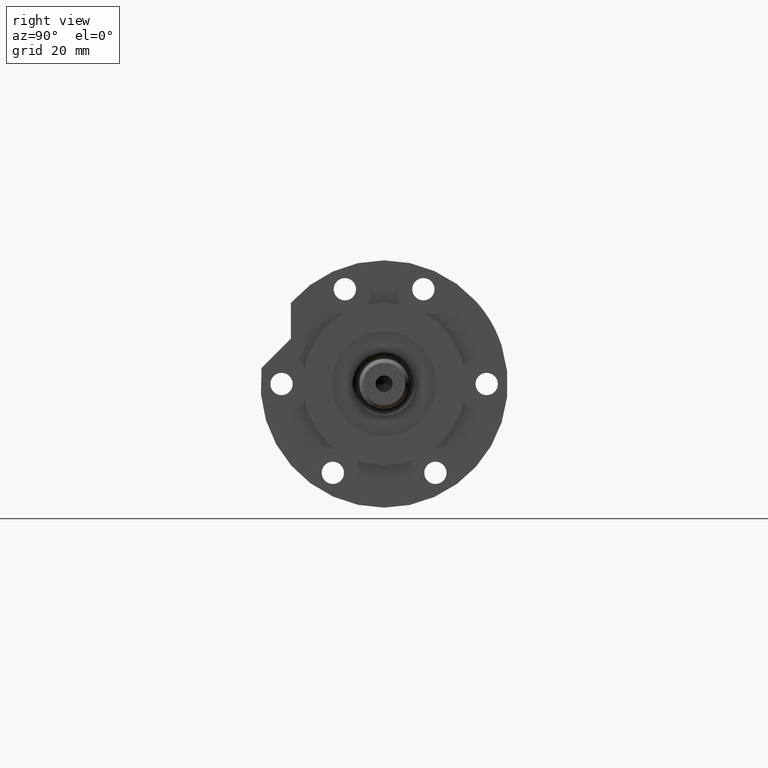
[diagram: clean part render]
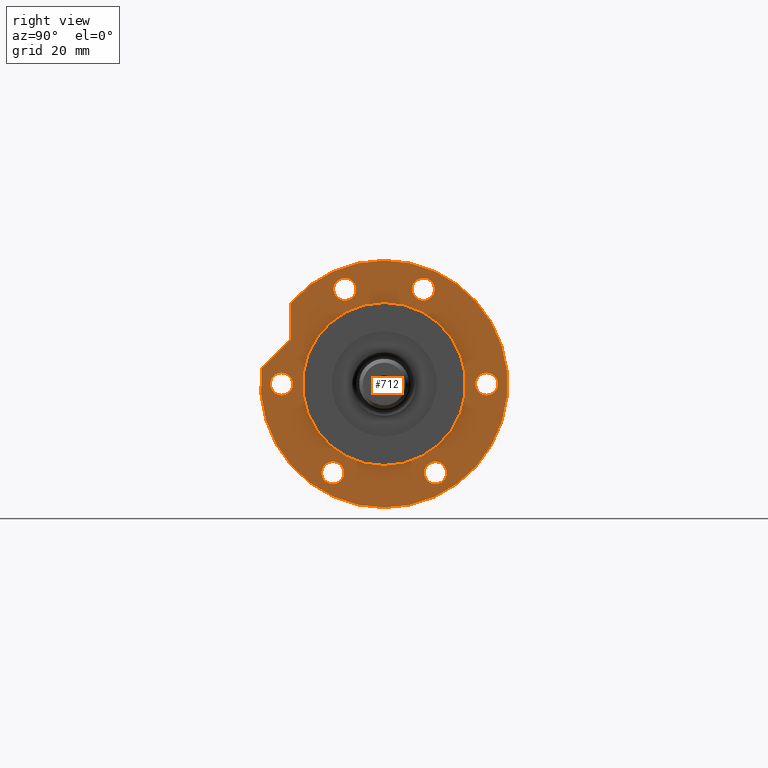
[diagram: same view with one face highlighted and labeled with its STEP entity id]
A machine part, right view. The second image highlights one B-rep face of the part: STEP entity #712.
In plain terms, the highlighted planar face has unit normal (1, 0, -0).
Its self-contained STEP definition (entity closure, byte-faithful):
#15 = AXIS2_PLACEMENT_3D ( 'NONE', #151, #5626, #1598 ) ;
#93 = AXIS2_PLACEMENT_3D ( 'NONE', #796, #2793, #6353 ) ;
#124 = FACE_BOUND ( 'NONE', #245, .T. ) ;
#141 = CARTESIAN_POINT ( 'NONE',  ( 0.000000000000000000, 39.00000000000000000, 17.00000000000000000 ) ) ;
#142 = DIRECTION ( 'NONE',  ( 0.000000000000000000, 0.000000000000000000, 1.000000000000000000 ) ) ;
#151 = CARTESIAN_POINT ( 'NONE',  ( 0.000000000000000000, -39.00000000000000000, 17.00000000000000000 ) ) ;
#176 = VERTEX_POINT ( 'NONE', #309 ) ;
#180 = CARTESIAN_POINT ( 'NONE',  ( 3.617158501555293296E-14, 35.47361286101151734, 17.00000000000000000 ) ) ;
#182 = LINE ( 'NONE', #2083, #5159 ) ;
#197 = EDGE_CURVE ( 'NONE', #4147, #1885, #521, .T. ) ;
#216 = DIRECTION ( 'NONE',  ( 1.000000000000000000, 0.000000000000000000, 0.000000000000000000 ) ) ;
#224 = CIRCLE ( 'NONE', #2841, 31.00000000000000711 ) ;
#233 = CARTESIAN_POINT ( 'NONE',  ( 30.83217135699462830, 35.47361286101148892, 17.00000000000000000 ) ) ;
#245 = EDGE_LOOP ( 'NONE', ( #751, #598 ) ) ;
#251 = CARTESIAN_POINT ( 'NONE',  ( 0.000000000000000000, 39.00000000000000000, 17.00000000000000000 ) ) ;
#284 = EDGE_LOOP ( 'NONE', ( #493, #508 ) ) ;
#288 = FACE_BOUND ( 'NONE', #2873, .T. ) ;
#289 = VERTEX_POINT ( 'NONE', #406 ) ;
#296 = CARTESIAN_POINT ( 'NONE',  ( 31.78130176794011064, -14.92465386223865842, 17.00000000000000000 ) ) ;
#309 = CARTESIAN_POINT ( 'NONE',  ( 4.250000000000000888, -39.00000000000000000, 17.00000000000000000 ) ) ;
#321 = DIRECTION ( 'NONE',  ( 0.000000000000000000, 0.000000000000000000, 1.000000000000000000 ) ) ;
#340 = CIRCLE ( 'NONE', #15, 4.250000000000000888 ) ;
#358 = DIRECTION ( 'NONE',  ( 1.000000000000000000, 0.000000000000000000, -0.000000000000000000 ) ) ;
#406 = CARTESIAN_POINT ( 'NONE',  ( -38.02499074759315079, 19.49999999999992539, 17.00000000000000000 ) ) ;
#493 = ORIENTED_EDGE ( 'NONE', *, *, #4815, .F. ) ;
#504 = ORIENTED_EDGE ( 'NONE', *, *, #1039, .F. ) ;
#508 = ORIENTED_EDGE ( 'NONE', *, *, #5744, .F. ) ;
#510 = EDGE_CURVE ( 'NONE', #2360, #2929, #6399, .T. ) ;
#521 = CIRCLE ( 'NONE', #4193, 4.250000000000000888 ) ;
#522 = CARTESIAN_POINT ( 'NONE',  ( 4.250000000000000888, 39.00000000000000000, 17.00000000000000000 ) ) ;
#598 = ORIENTED_EDGE ( 'NONE', *, *, #4343, .F. ) ;
#606 = LINE ( 'NONE', #180, #5764 ) ;
#617 = CARTESIAN_POINT ( 'NONE',  ( -46.99999999999999289, 0.000000000000000000, 17.00000000000000000 ) ) ;
#712 = ADVANCED_FACE ( 'NONE', ( #1662, #124, #5666, #2359, #3759, #1897, #5345, #288 ), #4854, .T. ) ;
#751 = ORIENTED_EDGE ( 'NONE', *, *, #1037, .F. ) ;
#796 = CARTESIAN_POINT ( 'NONE',  ( -33.77499074759302289, -19.50000000000015277, 17.00000000000000000 ) ) ;
#870 = AXIS2_PLACEMENT_3D ( 'NONE', #3126, #4155, #5143 ) ;
#913 = ORIENTED_EDGE ( 'NONE', *, *, #1494, .F. ) ;
#965 = AXIS2_PLACEMENT_3D ( 'NONE', #141, #2208, #2170 ) ;
#981 = DIRECTION ( 'NONE',  ( 0.000000000000000000, 0.000000000000000000, 1.000000000000000000 ) ) ;
#987 = CARTESIAN_POINT ( 'NONE',  ( 40.28130176794012129, -14.92465386223865842, 17.00000000000000000 ) ) ;
#1010 = EDGE_CURVE ( 'NONE', #2058, #6273, #606, .T. ) ;
#1037 = EDGE_CURVE ( 'NONE', #3743, #6459, #1982, .T. ) ;
#1039 = EDGE_CURVE ( 'NONE', #4352, #5539, #2303, .T. ) ;
#1053 = CIRCLE ( 'NONE', #965, 4.250000000000000888 ) ;
#1099 = CARTESIAN_POINT ( 'NONE',  ( -33.77499074759315079, 19.49999999999992539, 17.00000000000000000 ) ) ;
#1132 = VERTEX_POINT ( 'NONE', #1339 ) ;
#1158 = CARTESIAN_POINT ( 'NONE',  ( 0.000000000000000000, -39.00000000000000000, 17.00000000000000000 ) ) ;
#1251 = CARTESIAN_POINT ( 'NONE',  ( -33.77499074759302289, -19.50000000000015277, 17.00000000000000000 ) ) ;
#1305 = DIRECTION ( 'NONE',  ( 1.000000000000000000, 0.000000000000000000, 0.000000000000000000 ) ) ;
#1339 = CARTESIAN_POINT ( 'NONE',  ( 6.092310621118299352, 46.60347359688769586, 17.00000000000000000 ) ) ;
#1350 = CARTESIAN_POINT ( 'NONE',  ( 0.000000000000000000, 0.000000000000000000, 17.00000000000000000 ) ) ;
#1439 = DIRECTION ( 'NONE',  ( 0.000000000000000000, 0.000000000000000000, 1.000000000000000000 ) ) ;
#1444 = DIRECTION ( 'NONE',  ( 1.000000000000000000, 0.000000000000000000, 0.000000000000000000 ) ) ;
#1494 = EDGE_CURVE ( 'NONE', #2929, #2360, #3554, .T. ) ;
#1523 = EDGE_CURVE ( 'NONE', #6222, #289, #5135, .T. ) ;
#1598 = DIRECTION ( 'NONE',  ( 1.000000000000000000, 0.000000000000000000, 0.000000000000000000 ) ) ;
#1623 = ORIENTED_EDGE ( 'NONE', *, *, #2132, .F. ) ;
#1640 = ORIENTED_EDGE ( 'NONE', *, *, #1523, .F. ) ;
#1662 = FACE_BOUND ( 'NONE', #4498, .T. ) ;
#1668 = ORIENTED_EDGE ( 'NONE', *, *, #5687, .F. ) ;
#1682 = CARTESIAN_POINT ( 'NONE',  ( 0.000000000000000000, 0.000000000000000000, 17.00000000000000000 ) ) ;
#1683 = DIRECTION ( 'NONE',  ( 1.000000000000000000, 0.000000000000000000, 0.000000000000000000 ) ) ;
#1751 = DIRECTION ( 'NONE',  ( 0.000000000000000000, 0.000000000000000000, 1.000000000000000000 ) ) ;
#1860 = CARTESIAN_POINT ( 'NONE',  ( -4.250000000000000888, 39.00000000000000000, 17.00000000000000000 ) ) ;
#1885 = VERTEX_POINT ( 'NONE', #1860 ) ;
#1897 = FACE_BOUND ( 'NONE', #2226, .T. ) ;
#1973 = AXIS2_PLACEMENT_3D ( 'NONE', #5676, #6310, #3281 ) ;
#1982 = CIRCLE ( 'NONE', #5024, 4.250000000000003553 ) ;
#2058 = VERTEX_POINT ( 'NONE', #5266 ) ;
#2061 = EDGE_LOOP ( 'NONE', ( #504, #3803 ) ) ;
#2083 = CARTESIAN_POINT ( 'NONE',  ( 26.34789210900296652, 26.34789210900323297, 17.00000000000000000 ) ) ;
#2116 = DIRECTION ( 'NONE',  ( 0.000000000000000000, 0.000000000000000000, 1.000000000000000000 ) ) ;
#2122 = DIRECTION ( 'NONE',  ( 0.000000000000000000, 0.000000000000000000, 1.000000000000000000 ) ) ;
#2132 = EDGE_CURVE ( 'NONE', #1885, #4147, #1053, .T. ) ;
#2165 = EDGE_CURVE ( 'NONE', #3716, #2710, #224, .T. ) ;
#2170 = DIRECTION ( 'NONE',  ( 1.000000000000000000, 0.000000000000000000, 0.000000000000000000 ) ) ;
#2208 = DIRECTION ( 'NONE',  ( 0.000000000000000000, 0.000000000000000000, 1.000000000000000000 ) ) ;
#2226 = EDGE_LOOP ( 'NONE', ( #5034, #1640 ) ) ;
#2229 = CIRCLE ( 'NONE', #4432, 46.99999999999999289 ) ;
#2271 = CARTESIAN_POINT ( 'NONE',  ( -33.77499074759315079, 19.49999999999992539, 17.00000000000000000 ) ) ;
#2303 = CIRCLE ( 'NONE', #2934, 4.250000000000003553 ) ;
#2359 = FACE_BOUND ( 'NONE', #284, .T. ) ;
#2360 = VERTEX_POINT ( 'NONE', #2826 ) ;
#2412 = EDGE_LOOP ( 'NONE', ( #913, #5195 ) ) ;
#2548 = VERTEX_POINT ( 'NONE', #6354 ) ;
#2593 = DIRECTION ( 'NONE',  ( 0.000000000000000000, 0.000000000000000000, 1.000000000000000000 ) ) ;
#2605 = VERTEX_POINT ( 'NONE', #617 ) ;
#2640 = DIRECTION ( 'NONE',  ( 0.7071067811865511255, -0.7071067811865440200, 0.000000000000000000 ) ) ;
#2661 = DIRECTION ( 'NONE',  ( 0.000000000000000000, 0.000000000000000000, 1.000000000000000000 ) ) ;
#2708 = DIRECTION ( 'NONE',  ( 0.000000000000000000, 0.000000000000000000, 1.000000000000000000 ) ) ;
#2710 = VERTEX_POINT ( 'NONE', #5017 ) ;
#2778 = ORIENTED_EDGE ( 'NONE', *, *, #3299, .T. ) ;
#2793 = DIRECTION ( 'NONE',  ( 0.000000000000000000, 0.000000000000000000, 1.000000000000000000 ) ) ;
#2826 = CARTESIAN_POINT ( 'NONE',  ( -29.52499074759301578, -19.50000000000015277, 17.00000000000000000 ) ) ;
#2841 = AXIS2_PLACEMENT_3D ( 'NONE', #1682, #2661, #3646 ) ;
#2873 = EDGE_LOOP ( 'NONE', ( #4028, #1668 ) ) ;
#2905 = VERTEX_POINT ( 'NONE', #3841 ) ;
#2929 = VERTEX_POINT ( 'NONE', #5844 ) ;
#2934 = AXIS2_PLACEMENT_3D ( 'NONE', #4121, #5657, #6125 ) ;
#3028 = EDGE_CURVE ( 'NONE', #1132, #2605, #6424, .T. ) ;
#3126 = CARTESIAN_POINT ( 'NONE',  ( 0.000000000000000000, 0.000000000000000000, 17.00000000000000000 ) ) ;
#3193 = DIRECTION ( 'NONE',  ( 1.000000000000000000, -1.019675812477181804E-15, 0.000000000000000000 ) ) ;
#3239 = CARTESIAN_POINT ( 'NONE',  ( -29.52499074759315434, 19.49999999999992539, 17.00000000000000000 ) ) ;
#3243 = DIRECTION ( 'NONE',  ( 1.000000000000000000, 0.000000000000000000, 0.000000000000000000 ) ) ;
#3272 = CARTESIAN_POINT ( 'NONE',  ( 0.000000000000000000, 0.000000000000000000, 17.00000000000000000 ) ) ;
#3275 = CIRCLE ( 'NONE', #4531, 4.249999999999996447 ) ;
#3281 = DIRECTION ( 'NONE',  ( 1.000000000000000000, 0.000000000000000000, 0.000000000000000000 ) ) ;
#3292 = EDGE_CURVE ( 'NONE', #2605, #2905, #5900, .T. ) ;
#3299 = EDGE_CURVE ( 'NONE', #2905, #6273, #2229, .T. ) ;
#3554 = CIRCLE ( 'NONE', #4305, 4.250000000000003553 ) ;
#3577 = AXIS2_PLACEMENT_3D ( 'NONE', #1350, #4957, #1444 ) ;
#3612 = EDGE_CURVE ( 'NONE', #289, #6222, #3275, .T. ) ;
#3620 = CARTESIAN_POINT ( 'NONE',  ( 31.78130176794011064, 14.92465386223865842, 17.00000000000000000 ) ) ;
#3646 = DIRECTION ( 'NONE',  ( 1.000000000000000000, 0.000000000000000000, 0.000000000000000000 ) ) ;
#3716 = VERTEX_POINT ( 'NONE', #5695 ) ;
#3743 = VERTEX_POINT ( 'NONE', #3620 ) ;
#3759 = FACE_BOUND ( 'NONE', #2412, .T. ) ;
#3803 = ORIENTED_EDGE ( 'NONE', *, *, #4772, .F. ) ;
#3841 = CARTESIAN_POINT ( 'NONE',  ( 46.99999999999999289, 5.755839955992559063E-15, 17.00000000000000000 ) ) ;
#4000 = AXIS2_PLACEMENT_3D ( 'NONE', #6159, #2708, #4783 ) ;
#4028 = ORIENTED_EDGE ( 'NONE', *, *, #2165, .F. ) ;
#4072 = AXIS2_PLACEMENT_3D ( 'NONE', #3272, #321, #358 ) ;
#4103 = ORIENTED_EDGE ( 'NONE', *, *, #3292, .T. ) ;
#4121 = CARTESIAN_POINT ( 'NONE',  ( 36.03130176794011419, -14.92465386223865842, 17.00000000000000000 ) ) ;
#4146 = DIRECTION ( 'NONE',  ( 1.000000000000000000, 0.000000000000000000, 0.000000000000000000 ) ) ;
#4147 = VERTEX_POINT ( 'NONE', #522 ) ;
#4155 = DIRECTION ( 'NONE',  ( 0.000000000000000000, 0.000000000000000000, 1.000000000000000000 ) ) ;
#4177 = ORIENTED_EDGE ( 'NONE', *, *, #3028, .T. ) ;
#4189 = DIRECTION ( 'NONE',  ( 1.000000000000000000, 0.000000000000000000, 0.000000000000000000 ) ) ;
#4193 = AXIS2_PLACEMENT_3D ( 'NONE', #251, #1751, #1305 ) ;
#4198 = ORIENTED_EDGE ( 'NONE', *, *, #1010, .F. ) ;
#4305 = AXIS2_PLACEMENT_3D ( 'NONE', #1251, #6274, #3243 ) ;
#4343 = EDGE_CURVE ( 'NONE', #6459, #3743, #4803, .T. ) ;
#4352 = VERTEX_POINT ( 'NONE', #296 ) ;
#4432 = AXIS2_PLACEMENT_3D ( 'NONE', #5663, #2122, #4189 ) ;
#4498 = EDGE_LOOP ( 'NONE', ( #1623, #5938 ) ) ;
#4531 = AXIS2_PLACEMENT_3D ( 'NONE', #1099, #981, #5554 ) ;
#4606 = CARTESIAN_POINT ( 'NONE',  ( 36.03130176794011419, 14.92465386223865842, 17.00000000000000000 ) ) ;
#4654 = ORIENTED_EDGE ( 'NONE', *, *, #5769, .F. ) ;
#4772 = EDGE_CURVE ( 'NONE', #5539, #4352, #5773, .T. ) ;
#4783 = DIRECTION ( 'NONE',  ( 1.000000000000000000, 0.000000000000000000, 0.000000000000000000 ) ) ;
#4792 = DIRECTION ( 'NONE',  ( 1.000000000000000000, 0.000000000000000000, 0.000000000000000000 ) ) ;
#4803 = CIRCLE ( 'NONE', #1973, 4.250000000000003553 ) ;
#4815 = EDGE_CURVE ( 'NONE', #2548, #176, #4937, .T. ) ;
#4854 = PLANE ( 'NONE',  #4072 ) ;
#4937 = CIRCLE ( 'NONE', #6410, 4.250000000000000888 ) ;
#4957 = DIRECTION ( 'NONE',  ( 0.000000000000000000, 0.000000000000000000, 1.000000000000000000 ) ) ;
#5017 = CARTESIAN_POINT ( 'NONE',  ( 31.00000000000000711, 3.796405077356795904E-15, 17.00000000000000000 ) ) ;
#5024 = AXIS2_PLACEMENT_3D ( 'NONE', #4606, #2116, #216 ) ;
#5034 = ORIENTED_EDGE ( 'NONE', *, *, #3612, .F. ) ;
#5135 = CIRCLE ( 'NONE', #6077, 4.249999999999996447 ) ;
#5143 = DIRECTION ( 'NONE',  ( 1.000000000000000000, 0.000000000000000000, 0.000000000000000000 ) ) ;
#5159 = VECTOR ( 'NONE', #2640, 999.9999999999998863 ) ;
#5195 = ORIENTED_EDGE ( 'NONE', *, *, #510, .F. ) ;
#5266 = CARTESIAN_POINT ( 'NONE',  ( 17.22217135699461110, 35.47361286101150313, 17.00000000000000000 ) ) ;
#5345 = FACE_OUTER_BOUND ( 'NONE', #5933, .T. ) ;
#5539 = VERTEX_POINT ( 'NONE', #987 ) ;
#5554 = DIRECTION ( 'NONE',  ( 1.000000000000000000, 0.000000000000000000, 0.000000000000000000 ) ) ;
#5626 = DIRECTION ( 'NONE',  ( 0.000000000000000000, 0.000000000000000000, 1.000000000000000000 ) ) ;
#5657 = DIRECTION ( 'NONE',  ( 0.000000000000000000, 0.000000000000000000, 1.000000000000000000 ) ) ;
#5663 = CARTESIAN_POINT ( 'NONE',  ( 0.000000000000000000, 0.000000000000000000, 17.00000000000000000 ) ) ;
#5664 = AXIS2_PLACEMENT_3D ( 'NONE', #6181, #2593, #1683 ) ;
#5666 = FACE_BOUND ( 'NONE', #2061, .T. ) ;
#5676 = CARTESIAN_POINT ( 'NONE',  ( 36.03130176794011419, 14.92465386223865842, 17.00000000000000000 ) ) ;
#5687 = EDGE_CURVE ( 'NONE', #2710, #3716, #5789, .T. ) ;
#5695 = CARTESIAN_POINT ( 'NONE',  ( -31.00000000000000711, 0.000000000000000000, 17.00000000000000000 ) ) ;
#5744 = EDGE_CURVE ( 'NONE', #176, #2548, #340, .T. ) ;
#5764 = VECTOR ( 'NONE', #3193, 1000.000000000000000 ) ;
#5769 = EDGE_CURVE ( 'NONE', #1132, #2058, #182, .T. ) ;
#5773 = CIRCLE ( 'NONE', #5664, 4.250000000000003553 ) ;
#5789 = CIRCLE ( 'NONE', #870, 31.00000000000000711 ) ;
#5844 = CARTESIAN_POINT ( 'NONE',  ( -38.02499074759302289, -19.50000000000015277, 17.00000000000000000 ) ) ;
#5900 = CIRCLE ( 'NONE', #4000, 46.99999999999999289 ) ;
#5933 = EDGE_LOOP ( 'NONE', ( #4198, #4654, #4177, #4103, #2778 ) ) ;
#5938 = ORIENTED_EDGE ( 'NONE', *, *, #197, .F. ) ;
#6077 = AXIS2_PLACEMENT_3D ( 'NONE', #2271, #1439, #4792 ) ;
#6087 = CARTESIAN_POINT ( 'NONE',  ( 40.28130176794012129, 14.92465386223865842, 17.00000000000000000 ) ) ;
#6125 = DIRECTION ( 'NONE',  ( 1.000000000000000000, 0.000000000000000000, 0.000000000000000000 ) ) ;
#6159 = CARTESIAN_POINT ( 'NONE',  ( 0.000000000000000000, 0.000000000000000000, 17.00000000000000000 ) ) ;
#6181 = CARTESIAN_POINT ( 'NONE',  ( 36.03130176794011419, -14.92465386223865842, 17.00000000000000000 ) ) ;
#6222 = VERTEX_POINT ( 'NONE', #3239 ) ;
#6273 = VERTEX_POINT ( 'NONE', #233 ) ;
#6274 = DIRECTION ( 'NONE',  ( 0.000000000000000000, 0.000000000000000000, 1.000000000000000000 ) ) ;
#6310 = DIRECTION ( 'NONE',  ( 0.000000000000000000, 0.000000000000000000, 1.000000000000000000 ) ) ;
#6353 = DIRECTION ( 'NONE',  ( 1.000000000000000000, 0.000000000000000000, 0.000000000000000000 ) ) ;
#6354 = CARTESIAN_POINT ( 'NONE',  ( -4.250000000000000888, -39.00000000000000000, 17.00000000000000000 ) ) ;
#6399 = CIRCLE ( 'NONE', #93, 4.250000000000003553 ) ;
#6410 = AXIS2_PLACEMENT_3D ( 'NONE', #1158, #142, #4146 ) ;
#6424 = CIRCLE ( 'NONE', #3577, 46.99999999999999289 ) ;
#6459 = VERTEX_POINT ( 'NONE', #6087 ) ;